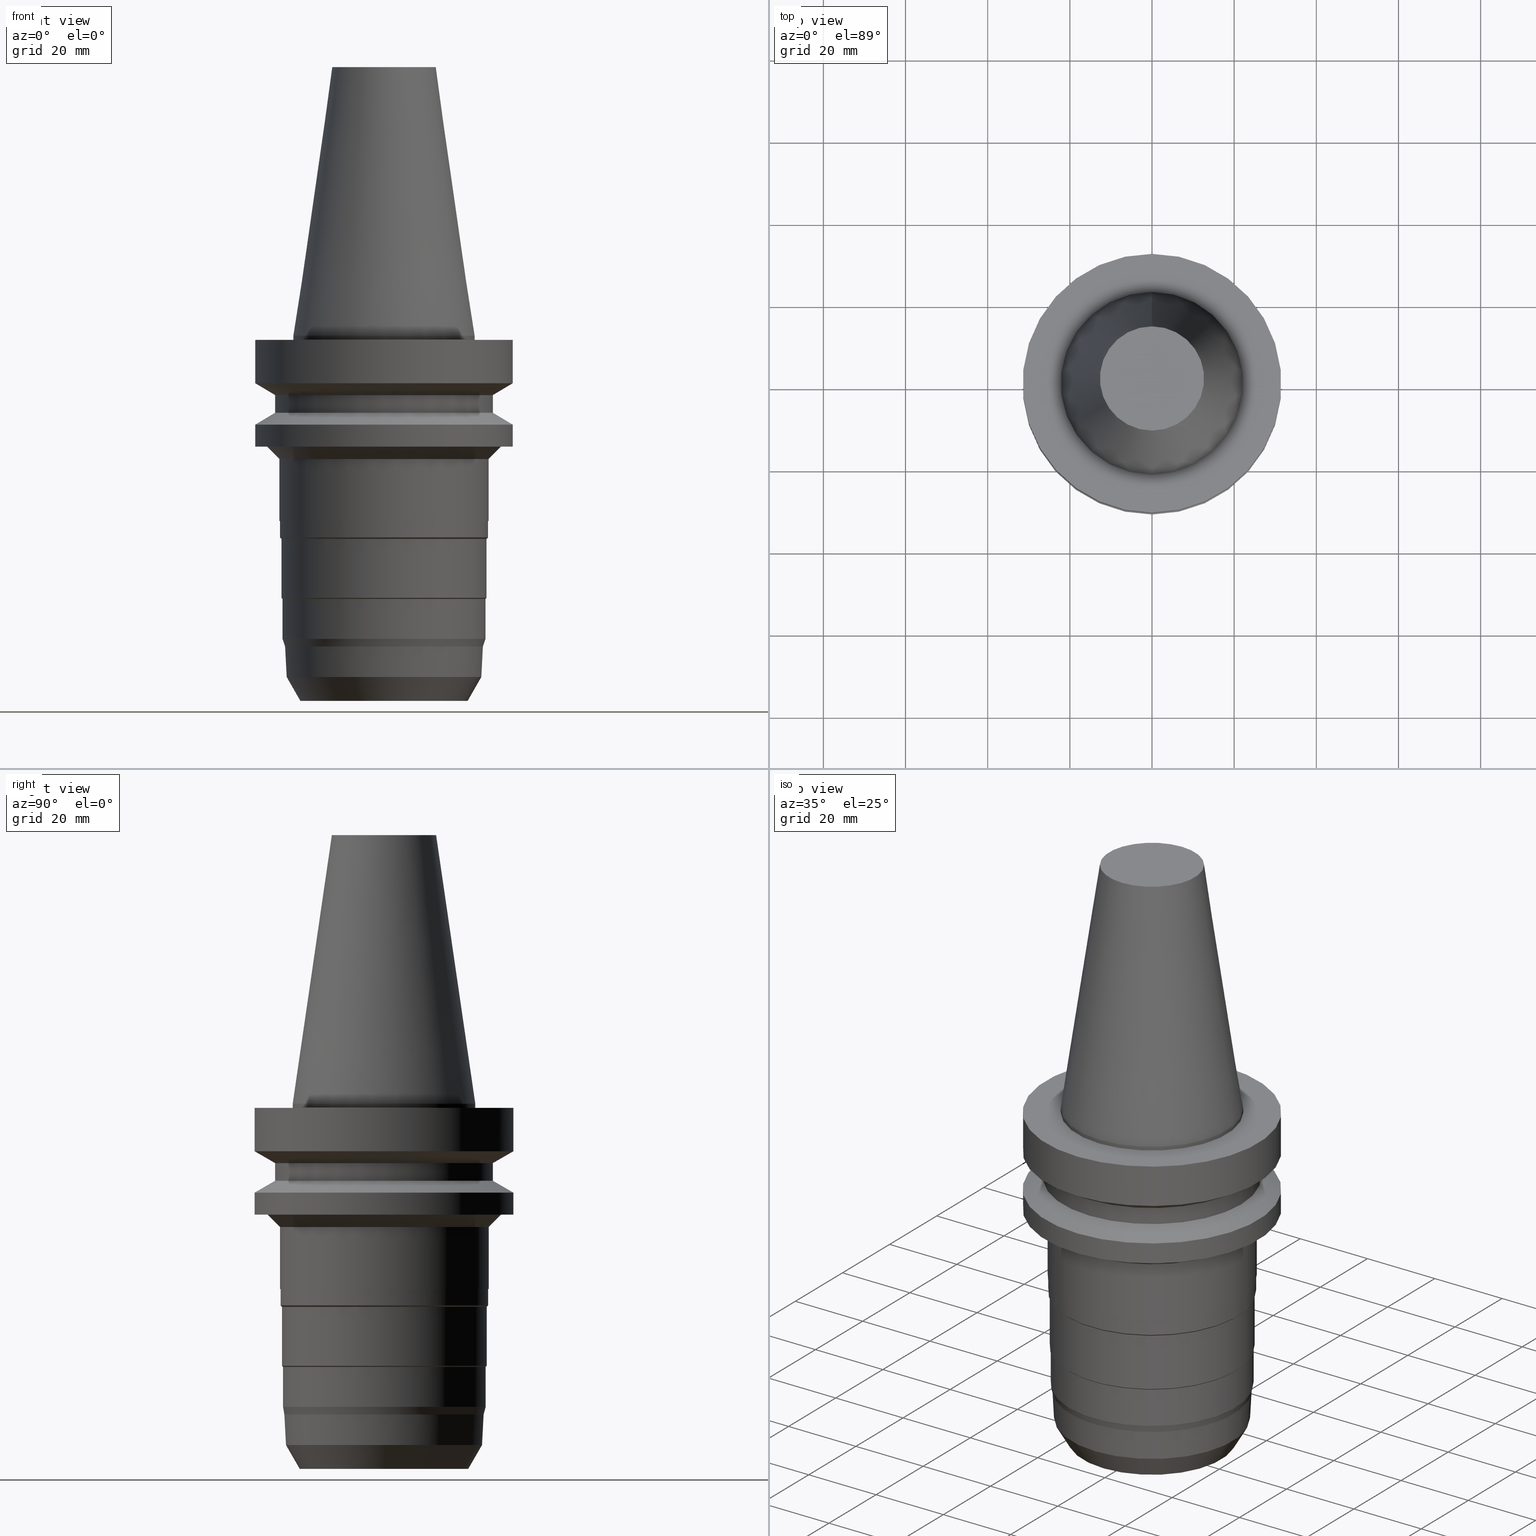
[diagram: canonical four-view strip — front | top / right | iso, engineering-drawing reading convention]
A machine part, canonical four-view strip (front | top / right | iso — engineering-drawing reading convention). The complete STEP part file that produces these views, byte-faithful:
ISO-10303-21;
HEADER;
FILE_DESCRIPTION((''),'1');
FILE_NAME('V:/90_\X2\53D65F9730C730FC30BF\X0\/00_\X2\6DE18DEF30C730FC30BF\X0\/ALL/BBT-BKUS\X2\FF76FF80FF9BFF78FF9E752852A05DE556F3\X0\201801/BBT40-HMC-S/BBT40-HMC.750S-3.5.stp','2018-02-07T04:08:06',(''),(''),'Spatial Interop R21 SP3','Kubotek KeyCreator 2011 V10.0.2 (22737)',' ');
FILE_SCHEMA(('automotive_design'));
ENDSEC;
DATA;
#1=MECHANICAL_DESIGN_GEOMETRIC_PRESENTATION_REPRESENTATION(' ',(#10,#11,#12,#13,#14,#15,#16,#17,#18,#19,#20,#21,#22,#23,#24,#25,#26,#27,#28,#29,#30,#31,#32,#33,#34,#35,#36,#37,#38,#39,#40,#41,#42,#43,#44,#45,#46,#47,#48,#49,#50,#51,#52,#53),#6);
#2=PRODUCT_DEFINITION_CONTEXT('',#54,'design');
#3=APPLICATION_PROTOCOL_DEFINITION('INTERNATIONAL STANDARD','automotive_design',1994,#54);
#4=PRODUCT_CATEGORY_RELATIONSHIP('NONE','NONE',#55,#56);
#5=SHAPE_DEFINITION_REPRESENTATION(#57,#58);
#6= (GEOMETRIC_REPRESENTATION_CONTEXT(3)GLOBAL_UNCERTAINTY_ASSIGNED_CONTEXT((#61))GLOBAL_UNIT_ASSIGNED_CONTEXT((#63,#64,#65))REPRESENTATION_CONTEXT('NONE','WORKSPACE'));
#10=STYLED_ITEM('',(#67,#68),#69);
#11=STYLED_ITEM('',(#70,#71),#72);
#12=STYLED_ITEM('',(#73,#74),#75);
#13=STYLED_ITEM('',(#76),#77);
#14=STYLED_ITEM('',(#78),#79);
#15=STYLED_ITEM('',(#80,#81),#82);
#16=STYLED_ITEM('',(#83,#84),#85);
#17=STYLED_ITEM('',(#86,#87),#88);
#18=STYLED_ITEM('',(#89),#90);
#19=STYLED_ITEM('',(#91,#92),#93);
#20=STYLED_ITEM('',(#94),#95);
#21=STYLED_ITEM('',(#96),#97);
#22=STYLED_ITEM('',(#98,#99),#100);
#23=STYLED_ITEM('',(#101,#102),#103);
#24=STYLED_ITEM('',(#104,#105),#106);
#25=STYLED_ITEM('',(#107),#108);
#26=STYLED_ITEM('',(#109),#110);
#27=STYLED_ITEM('',(#111,#112),#113);
#28=STYLED_ITEM('',(#114,#115),#116);
#29=STYLED_ITEM('',(#117,#118),#119);
#30=STYLED_ITEM('',(#120),#121);
#31=STYLED_ITEM('',(#122),#123);
#32=STYLED_ITEM('',(#124),#125);
#33=STYLED_ITEM('',(#126),#127);
#34=STYLED_ITEM('',(#128,#129),#130);
#35=STYLED_ITEM('',(#131,#132),#133);
#36=STYLED_ITEM('',(#134),#135);
#37=STYLED_ITEM('',(#136,#137),#138);
#38=STYLED_ITEM('',(#139,#140),#141);
#39=STYLED_ITEM('',(#142,#143),#144);
#40=STYLED_ITEM('',(#145,#146),#147);
#41=STYLED_ITEM('',(#148,#149),#150);
#42=STYLED_ITEM('',(#151),#152);
#43=STYLED_ITEM('',(#153),#154);
#44=STYLED_ITEM('',(#155),#156);
#45=STYLED_ITEM('',(#157,#158),#159);
#46=STYLED_ITEM('',(#160),#161);
#47=STYLED_ITEM('',(#162),#163);
#48=STYLED_ITEM('',(#164),#165);
#49=STYLED_ITEM('',(#166),#167);
#50=STYLED_ITEM('',(#168,#169),#170);
#51=STYLED_ITEM('',(#171,#172),#173);
#52=STYLED_ITEM('',(#174),#175);
#53=STYLED_ITEM('',(#176),#177);
#54=APPLICATION_CONTEXT(' ');
#55=PRODUCT_CATEGORY('part','NONE');
#56=PRODUCT_RELATED_PRODUCT_CATEGORY('detail',' ',(#178));
#57=PRODUCT_DEFINITION_SHAPE('NONE','NONE',#179);
#58=ADVANCED_BREP_SHAPE_REPRESENTATION('Unnamed[1]',(#170,#180),#6);
#61=UNCERTAINTY_MEASURE_WITH_UNIT(LENGTH_MEASURE(1.0E-006),#63,'','');
#63= (CONVERSION_BASED_UNIT('MILLIMETRE',#183)LENGTH_UNIT()NAMED_UNIT(#186));
#64= (NAMED_UNIT(#188)PLANE_ANGLE_UNIT()SI_UNIT($,.RADIAN.));
#65= (NAMED_UNIT(#188)SOLID_ANGLE_UNIT()SI_UNIT($,.STERADIAN.));
#67=PRESENTATION_STYLE_ASSIGNMENT((#194));
#68=PRESENTATION_STYLE_ASSIGNMENT((#195));
#69=ADVANCED_FACE('Unnamed[1]',(#196),#197,.T.);
#70=PRESENTATION_STYLE_ASSIGNMENT((#198));
#71=PRESENTATION_STYLE_ASSIGNMENT((#199));
#72=ADVANCED_FACE('Unnamed[1]',(#200,#201),#202,.T.);
#73=PRESENTATION_STYLE_ASSIGNMENT((#203));
#74=PRESENTATION_STYLE_ASSIGNMENT((#204));
#75=ADVANCED_FACE('Unnamed[1]',(#205,#206),#207,.T.);
#76=PRESENTATION_STYLE_ASSIGNMENT((#208));
#77=EDGE_CURVE('Unnamed[1]',#209,#209,#210,.T.);
#78=PRESENTATION_STYLE_ASSIGNMENT((#211));
#79=EDGE_CURVE('Unnamed[1]',#212,#212,#213,.T.);
#80=PRESENTATION_STYLE_ASSIGNMENT((#214));
#81=PRESENTATION_STYLE_ASSIGNMENT((#215));
#82=ADVANCED_FACE('Unnamed[1]',(#216,#217),#218,.T.);
#83=PRESENTATION_STYLE_ASSIGNMENT((#219));
#84=PRESENTATION_STYLE_ASSIGNMENT((#220));
#85=ADVANCED_FACE('Unnamed[1]',(#221,#222),#223,.T.);
#86=PRESENTATION_STYLE_ASSIGNMENT((#224));
#87=PRESENTATION_STYLE_ASSIGNMENT((#225));
#88=ADVANCED_FACE('Unnamed[1]',(#226,#227),#228,.T.);
#89=PRESENTATION_STYLE_ASSIGNMENT((#229));
#90=EDGE_CURVE('Unnamed[1]',#230,#230,#231,.T.);
#91=PRESENTATION_STYLE_ASSIGNMENT((#232));
#92=PRESENTATION_STYLE_ASSIGNMENT((#233));
#93=ADVANCED_FACE('Unnamed[1]',(#234,#235),#236,.T.);
#94=PRESENTATION_STYLE_ASSIGNMENT((#237));
#95=EDGE_CURVE('Unnamed[1]',#238,#238,#239,.T.);
#96=PRESENTATION_STYLE_ASSIGNMENT((#240));
#97=EDGE_CURVE('Unnamed[1]',#241,#241,#242,.T.);
#98=PRESENTATION_STYLE_ASSIGNMENT((#243));
#99=PRESENTATION_STYLE_ASSIGNMENT((#244));
#100=ADVANCED_FACE('Unnamed[1]',(#245,#246),#247,.T.);
#101=PRESENTATION_STYLE_ASSIGNMENT((#248));
#102=PRESENTATION_STYLE_ASSIGNMENT((#249));
#103=ADVANCED_FACE('Unnamed[1]',(#250,#251),#252,.T.);
#104=PRESENTATION_STYLE_ASSIGNMENT((#253));
#105=PRESENTATION_STYLE_ASSIGNMENT((#254));
#106=ADVANCED_FACE('Unnamed[1]',(#255,#256),#257,.T.);
#107=PRESENTATION_STYLE_ASSIGNMENT((#258));
#108=EDGE_CURVE('Unnamed[1]',#259,#259,#260,.T.);
#109=PRESENTATION_STYLE_ASSIGNMENT((#261));
#110=EDGE_CURVE('Unnamed[1]',#262,#262,#263,.T.);
#111=PRESENTATION_STYLE_ASSIGNMENT((#264));
#112=PRESENTATION_STYLE_ASSIGNMENT((#265));
#113=ADVANCED_FACE('Unnamed[1]',(#266,#267),#268,.T.);
#114=PRESENTATION_STYLE_ASSIGNMENT((#269));
#115=PRESENTATION_STYLE_ASSIGNMENT((#270));
#116=ADVANCED_FACE('Unnamed[1]',(#271,#272),#273,.T.);
#117=PRESENTATION_STYLE_ASSIGNMENT((#274));
#118=PRESENTATION_STYLE_ASSIGNMENT((#275));
#119=ADVANCED_FACE('Unnamed[1]',(#276,#277),#278,.T.);
#120=PRESENTATION_STYLE_ASSIGNMENT((#279));
#121=EDGE_CURVE('Unnamed[1]',#280,#280,#281,.T.);
#122=PRESENTATION_STYLE_ASSIGNMENT((#282));
#123=EDGE_CURVE('Unnamed[1]',#283,#283,#284,.T.);
#124=PRESENTATION_STYLE_ASSIGNMENT((#285));
#125=EDGE_CURVE('Unnamed[1]',#286,#286,#287,.T.);
#126=PRESENTATION_STYLE_ASSIGNMENT((#288));
#127=EDGE_CURVE('Unnamed[1]',#289,#289,#290,.T.);
#128=PRESENTATION_STYLE_ASSIGNMENT((#291));
#129=PRESENTATION_STYLE_ASSIGNMENT((#292));
#130=ADVANCED_FACE('Unnamed[1]',(#293,#294),#295,.T.);
#131=PRESENTATION_STYLE_ASSIGNMENT((#296));
#132=PRESENTATION_STYLE_ASSIGNMENT((#297));
#133=ADVANCED_FACE('Unnamed[1]',(#298),#299,.T.);
#134=PRESENTATION_STYLE_ASSIGNMENT((#300));
#135=EDGE_CURVE('Unnamed[1]',#301,#301,#302,.T.);
#136=PRESENTATION_STYLE_ASSIGNMENT((#303));
#137=PRESENTATION_STYLE_ASSIGNMENT((#304));
#138=ADVANCED_FACE('Unnamed[1]',(#305,#306),#307,.T.);
#139=PRESENTATION_STYLE_ASSIGNMENT((#308));
#140=PRESENTATION_STYLE_ASSIGNMENT((#309));
#141=ADVANCED_FACE('Unnamed[1]',(#310,#311),#312,.T.);
#142=PRESENTATION_STYLE_ASSIGNMENT((#313));
#143=PRESENTATION_STYLE_ASSIGNMENT((#314));
#144=ADVANCED_FACE('Unnamed[1]',(#315,#316),#317,.T.);
#145=PRESENTATION_STYLE_ASSIGNMENT((#318));
#146=PRESENTATION_STYLE_ASSIGNMENT((#319));
#147=ADVANCED_FACE('Unnamed[1]',(#320,#321),#322,.T.);
#148=PRESENTATION_STYLE_ASSIGNMENT((#323));
#149=PRESENTATION_STYLE_ASSIGNMENT((#324));
#150=ADVANCED_FACE('Unnamed[1]',(#325,#326),#327,.T.);
#151=PRESENTATION_STYLE_ASSIGNMENT((#328));
#152=EDGE_CURVE('Unnamed[1]',#329,#329,#330,.T.);
#153=PRESENTATION_STYLE_ASSIGNMENT((#331));
#154=EDGE_CURVE('Unnamed[1]',#332,#332,#333,.T.);
#155=PRESENTATION_STYLE_ASSIGNMENT((#334));
#156=EDGE_CURVE('Unnamed[1]',#335,#335,#336,.T.);
#157=PRESENTATION_STYLE_ASSIGNMENT((#337));
#158=PRESENTATION_STYLE_ASSIGNMENT((#338));
#159=ADVANCED_FACE('Unnamed[1]',(#339,#340),#341,.T.);
#160=PRESENTATION_STYLE_ASSIGNMENT((#342));
#161=EDGE_CURVE('Unnamed[1]',#343,#343,#344,.T.);
#162=PRESENTATION_STYLE_ASSIGNMENT((#345));
#163=EDGE_CURVE('Unnamed[1]',#346,#346,#347,.T.);
#164=PRESENTATION_STYLE_ASSIGNMENT((#348));
#165=EDGE_CURVE('Unnamed[1]',#349,#349,#350,.T.);
#166=PRESENTATION_STYLE_ASSIGNMENT((#351));
#167=EDGE_CURVE('Unnamed[1]',#352,#352,#353,.T.);
#168=PRESENTATION_STYLE_ASSIGNMENT((#354));
#169=PRESENTATION_STYLE_ASSIGNMENT((#355));
#170=MANIFOLD_SOLID_BREP('Unnamed[1]',#356);
#171=PRESENTATION_STYLE_ASSIGNMENT((#357));
#172=PRESENTATION_STYLE_ASSIGNMENT((#358));
#173=ADVANCED_FACE('Unnamed[1]',(#359,#360),#361,.T.);
#174=PRESENTATION_STYLE_ASSIGNMENT((#362));
#175=EDGE_CURVE('Unnamed[1]',#363,#363,#364,.T.);
#176=PRESENTATION_STYLE_ASSIGNMENT((#365));
#177=EDGE_CURVE('Unnamed[1]',#366,#366,#367,.T.);
#178=PRODUCT('Unnamed[1]','Unnamed[1]','PART-Unnamed[1]-DESC',(#368));
#179=PRODUCT_DEFINITION('NONE','NONE',#369,#2);
#180=AXIS2_PLACEMENT_3D('',#370,#371,#372);
#183=LENGTH_MEASURE_WITH_UNIT(LENGTH_MEASURE(1.0),#373);
#186=DIMENSIONAL_EXPONENTS(1.0,0.0,0.0,0.0,0.0,0.0,0.0);
#188=DIMENSIONAL_EXPONENTS(0.0,0.0,0.0,0.0,0.0,0.0,0.0);
#194=SURFACE_STYLE_USAGE(.BOTH.,#374);
#195=CURVE_STYLE('',#375,POSITIVE_LENGTH_MEASURE(1000.0),#376);
#196=FACE_OUTER_BOUND('',#377,.T.);
#197=PLANE('',#378);
#198=SURFACE_STYLE_USAGE(.BOTH.,#379);
#199=CURVE_STYLE('',#380,POSITIVE_LENGTH_MEASURE(1000.0),#381);
#200=FACE_BOUND('',#382,.T.);
#201=FACE_BOUND('',#383,.T.);
#202=CONICAL_SURFACE('',#384,29.0000000000004,1.04719755119651);
#203=SURFACE_STYLE_USAGE(.BOTH.,#385);
#204=CURVE_STYLE('',#386,POSITIVE_LENGTH_MEASURE(1000.0),#387);
#205=FACE_BOUND('',#388,.T.);
#206=FACE_BOUND('',#389,.T.);
#207=CONICAL_SURFACE('',#390,22.180788497608,0.523598775598287);
#208=CURVE_STYLE('',#391,POSITIVE_LENGTH_MEASURE(1000.0),#392);
#209=VERTEX_POINT('',#393);
#210=CIRCLE('',#394,26.5);
#211=CURVE_STYLE('',#395,POSITIVE_LENGTH_MEASURE(1000.0),#396);
#212=VERTEX_POINT('',#397);
#213=CIRCLE('',#398,31.5000000000004);
#214=SURFACE_STYLE_USAGE(.BOTH.,#399);
#215=CURVE_STYLE('',#400,POSITIVE_LENGTH_MEASURE(1000.0),#401);
#216=FACE_BOUND('',#402,.T.);
#217=FACE_OUTER_BOUND('',#403,.T.);
#218=PLANE('',#404);
#219=SURFACE_STYLE_USAGE(.BOTH.,#405);
#220=CURVE_STYLE('',#406,POSITIVE_LENGTH_MEASURE(1000.0),#407);
#221=FACE_BOUND('',#408,.T.);
#222=FACE_BOUND('',#409,.T.);
#223=CONICAL_SURFACE('',#410,25.1749999999999,0.785398163396408);
#224=SURFACE_STYLE_USAGE(.BOTH.,#411);
#225=CURVE_STYLE('',#412,POSITIVE_LENGTH_MEASURE(1000.0),#413);
#226=FACE_OUTER_BOUND('',#414,.T.);
#227=FACE_BOUND('',#415,.T.);
#228=PLANE('',#416);
#229=CURVE_STYLE('',#417,POSITIVE_LENGTH_MEASURE(1000.0),#418);
#230=VERTEX_POINT('',#419);
#231=CIRCLE('',#420,25.5);
#232=SURFACE_STYLE_USAGE(.BOTH.,#421);
#233=CURVE_STYLE('',#422,POSITIVE_LENGTH_MEASURE(1000.0),#423);
#234=FACE_BOUND('',#424,.T.);
#235=FACE_BOUND('',#425,.T.);
#236=CYLINDRICAL_SURFACE('',#426,31.5);
#237=CURVE_STYLE('',#427,POSITIVE_LENGTH_MEASURE(1000.0),#428);
#238=VERTEX_POINT('',#429);
#239=CIRCLE('',#430,24.7499999999998);
#240=CURVE_STYLE('',#431,POSITIVE_LENGTH_MEASURE(1000.0),#432);
#241=VERTEX_POINT('',#433);
#242=CIRCLE('',#434,31.5000000000004);
#243=SURFACE_STYLE_USAGE(.BOTH.,#435);
#244=CURVE_STYLE('',#436,POSITIVE_LENGTH_MEASURE(1000.0),#437);
#245=FACE_BOUND('',#438,.T.);
#246=FACE_BOUND('',#439,.T.);
#247=CONICAL_SURFACE('',#440,28.9999999999999,1.04719755119657);
#248=SURFACE_STYLE_USAGE(.BOTH.,#441);
#249=CURVE_STYLE('',#442,POSITIVE_LENGTH_MEASURE(1000.0),#443);
#250=FACE_BOUND('',#444,.T.);
#251=FACE_BOUND('',#445,.T.);
#252=CYLINDRICAL_SURFACE('',#446,26.4999999999997);
#253=SURFACE_STYLE_USAGE(.BOTH.,#447);
#254=CURVE_STYLE('',#448,POSITIVE_LENGTH_MEASURE(1000.0),#449);
#255=FACE_BOUND('',#450,.T.);
#256=FACE_OUTER_BOUND('',#451,.T.);
#257=PLANE('',#452);
#258=CURVE_STYLE('',#453,POSITIVE_LENGTH_MEASURE(1000.0),#454);
#259=VERTEX_POINT('',#455);
#260=CIRCLE('',#456,20.5000000000001);
#261=CURVE_STYLE('',#457,POSITIVE_LENGTH_MEASURE(1000.0),#458);
#262=VERTEX_POINT('',#459);
#263=CIRCLE('',#460,22.2250000000001);
#264=SURFACE_STYLE_USAGE(.BOTH.,#461);
#265=CURVE_STYLE('',#462,POSITIVE_LENGTH_MEASURE(1000.0),#463);
#266=FACE_BOUND('',#464,.T.);
#267=FACE_BOUND('',#465,.T.);
#268=CONICAL_SURFACE('',#466,24.8749999999998,0.785398163397427);
#269=SURFACE_STYLE_USAGE(.BOTH.,#467);
#270=CURVE_STYLE('',#468,POSITIVE_LENGTH_MEASURE(1000.0),#469);
#271=FACE_BOUND('',#470,.T.);
#272=FACE_BOUND('',#471,.T.);
#273=CONICAL_SURFACE('',#472,24.4999999999995,0.261799387798623);
#274=SURFACE_STYLE_USAGE(.BOTH.,#473);
#275=CURVE_STYLE('',#474,POSITIVE_LENGTH_MEASURE(1000.0),#475);
#276=FACE_BOUND('',#476,.T.);
#277=FACE_BOUND('',#477,.T.);
#278=CONICAL_SURFACE('',#478,24.0557884976076,0.052359877559767);
#279=CURVE_STYLE('',#479,POSITIVE_LENGTH_MEASURE(1000.0),#480);
#280=VERTEX_POINT('',#481);
#281=CIRCLE('',#482,26.4999999999995);
#282=CURVE_STYLE('',#483,POSITIVE_LENGTH_MEASURE(1000.0),#484);
#283=VERTEX_POINT('',#485);
#284=CIRCLE('',#486,23.8615769952158);
#285=CURVE_STYLE('',#487,POSITIVE_LENGTH_MEASURE(1000.0),#488);
#286=VERTEX_POINT('',#489);
#287=CIRCLE('',#490,24.7499999999996);
#288=CURVE_STYLE('',#491,POSITIVE_LENGTH_MEASURE(1000.0),#492);
#289=VERTEX_POINT('',#493);
#290=CIRCLE('',#494,24.9999999999996);
#291=SURFACE_STYLE_USAGE(.BOTH.,#495);
#292=CURVE_STYLE('',#496,POSITIVE_LENGTH_MEASURE(1000.0),#497);
#293=FACE_BOUND('',#498,.T.);
#294=FACE_BOUND('',#499,.T.);
#295=CONICAL_SURFACE('',#500,17.4562500000001,0.144812498238936);
#296=SURFACE_STYLE_USAGE(.BOTH.,#501);
#297=CURVE_STYLE('',#502,POSITIVE_LENGTH_MEASURE(1000.0),#503);
#298=FACE_OUTER_BOUND('',#504,.T.);
#299=PLANE('',#505);
#300=CURVE_STYLE('',#506,POSITIVE_LENGTH_MEASURE(1000.0),#507);
#301=VERTEX_POINT('',#508);
#302=CIRCLE('',#509,24.2499999999993);
#303=SURFACE_STYLE_USAGE(.BOTH.,#510);
#304=CURVE_STYLE('',#511,POSITIVE_LENGTH_MEASURE(1000.0),#512);
#305=FACE_BOUND('',#513,.T.);
#306=FACE_BOUND('',#514,.T.);
#307=CYLINDRICAL_SURFACE('',#515,22.2250000000001);
#308=SURFACE_STYLE_USAGE(.BOTH.,#516);
#309=CURVE_STYLE('',#517,POSITIVE_LENGTH_MEASURE(1000.0),#518);
#310=FACE_BOUND('',#519,.T.);
#311=FACE_BOUND('',#520,.T.);
#312=CYLINDRICAL_SURFACE('',#521,24.7499999999997);
#313=SURFACE_STYLE_USAGE(.BOTH.,#522);
#314=CURVE_STYLE('',#523,POSITIVE_LENGTH_MEASURE(1000.0),#524);
#315=FACE_BOUND('',#525,.T.);
#316=FACE_BOUND('',#526,.T.);
#317=CYLINDRICAL_SURFACE('',#527,31.5000000000005);
#318=SURFACE_STYLE_USAGE(.BOTH.,#528);
#319=CURVE_STYLE('',#529,POSITIVE_LENGTH_MEASURE(1000.0),#530);
#320=FACE_BOUND('',#531,.T.);
#321=FACE_BOUND('',#532,.T.);
#322=CYLINDRICAL_SURFACE('',#533,25.4999999999999);
#323=SURFACE_STYLE_USAGE(.BOTH.,#534);
#324=CURVE_STYLE('',#535,POSITIVE_LENGTH_MEASURE(1000.0),#536);
#325=FACE_BOUND('',#537,.T.);
#326=FACE_BOUND('',#538,.T.);
#327=CONICAL_SURFACE('',#539,27.0000000000002,0.785398163397458);
#328=CURVE_STYLE('',#540,POSITIVE_LENGTH_MEASURE(1000.0),#541);
#329=VERTEX_POINT('',#542);
#330=CIRCLE('',#543,25.3499999999984);
#331=CURVE_STYLE('',#544,POSITIVE_LENGTH_MEASURE(1000.0),#545);
#332=VERTEX_POINT('',#546);
#333=CIRCLE('',#547,31.5000000000007);
#334=CURVE_STYLE('',#548,POSITIVE_LENGTH_MEASURE(1000.0),#549);
#335=VERTEX_POINT('',#550);
#336=CIRCLE('',#551,24.9999999999997);
#337=SURFACE_STYLE_USAGE(.BOTH.,#552);
#338=CURVE_STYLE('',#553,POSITIVE_LENGTH_MEASURE(1000.0),#554);
#339=FACE_BOUND('',#555,.T.);
#340=FACE_BOUND('',#556,.T.);
#341=CYLINDRICAL_SURFACE('',#557,24.9999999999997);
#342=CURVE_STYLE('',#558,POSITIVE_LENGTH_MEASURE(1000.0),#559);
#343=VERTEX_POINT('',#560);
#344=CIRCLE('',#561,12.6875000000002);
#345=CURVE_STYLE('',#562,POSITIVE_LENGTH_MEASURE(1000.0),#563);
#346=VERTEX_POINT('',#564);
#347=CIRCLE('',#565,25.4999999999998);
#348=CURVE_STYLE('',#566,POSITIVE_LENGTH_MEASURE(1000.0),#567);
#349=VERTEX_POINT('',#568);
#350=CIRCLE('',#569,22.2250000000001);
#351=CURVE_STYLE('',#570,POSITIVE_LENGTH_MEASURE(1000.0),#571);
#352=VERTEX_POINT('',#572);
#353=CIRCLE('',#573,28.5000000000004);
#354=SURFACE_STYLE_USAGE(.BOTH.,#574);
#355=CURVE_STYLE('',#575,POSITIVE_LENGTH_MEASURE(1000.0),#576);
#356=CLOSED_SHELL('',(#69,#130,#138,#88,#93,#100,#103,#72,#144,#106,#150,#147,#82,#173,#85,#159,#113,#141,#116,#119,#75,#133));
#357=SURFACE_STYLE_USAGE(.BOTH.,#577);
#358=CURVE_STYLE('',#578,POSITIVE_LENGTH_MEASURE(1000.0),#579);
#359=FACE_BOUND('',#580,.T.);
#360=FACE_BOUND('',#581,.T.);
#361=CYLINDRICAL_SURFACE('',#582,25.3499999999993);
#362=CURVE_STYLE('',#583,POSITIVE_LENGTH_MEASURE(1000.0),#584);
#363=VERTEX_POINT('',#585);
#364=CIRCLE('',#586,31.4999999999997);
#365=CURVE_STYLE('',#587,POSITIVE_LENGTH_MEASURE(1000.0),#588);
#366=VERTEX_POINT('',#589);
#367=CIRCLE('',#590,25.3500000000001);
#368=PRODUCT_CONTEXT('',#54,'mechanical');
#369=PRODUCT_DEFINITION_FORMATION_WITH_SPECIFIED_SOURCE(' ','NONE',#178,.NOT_KNOWN.);
#370=CARTESIAN_POINT('',(0.0,0.0,0.0));
#371=DIRECTION('',(0.0,0.0,1.0));
#372=DIRECTION('',(1.0,0.0,0.0));
#373= (NAMED_UNIT(#186)LENGTH_UNIT()SI_UNIT(.MILLI.,.METRE.));
#374=SURFACE_SIDE_STYLE('',(#592));
#375=DRAUGHTING_PRE_DEFINED_CURVE_FONT('continuous');
#376=COLOUR_RGB('',0.0,1.0,0.0);
#377=EDGE_LOOP('',(#593));
#378=AXIS2_PLACEMENT_3D('',#594,#595,#596);
#379=SURFACE_SIDE_STYLE('',(#597));
#380=DRAUGHTING_PRE_DEFINED_CURVE_FONT('continuous');
#381=COLOUR_RGB('',0.0,1.0,0.0);
#382=EDGE_LOOP('',(#598));
#383=EDGE_LOOP('',(#599));
#384=AXIS2_PLACEMENT_3D('',#600,#601,#602);
#385=SURFACE_SIDE_STYLE('',(#603));
#386=DRAUGHTING_PRE_DEFINED_CURVE_FONT('continuous');
#387=COLOUR_RGB('',0.0,1.0,0.0);
#388=EDGE_LOOP('',(#604));
#389=EDGE_LOOP('',(#605));
#390=AXIS2_PLACEMENT_3D('',#606,#607,#608);
#391=DRAUGHTING_PRE_DEFINED_CURVE_FONT('continuous');
#392=COLOUR_RGB('',0.0,1.0,0.0);
#393=CARTESIAN_POINT('',(1.1479681728942E-015,26.5,-18.7477430013855));
#394=AXIS2_PLACEMENT_3D('',#609,#610,#611);
#395=DRAUGHTING_PRE_DEFINED_CURVE_FONT('continuous');
#396=COLOUR_RGB('',0.0,1.0,0.0);
#397=CARTESIAN_POINT('',(1.65327317884891E-015,31.5000000000004,-26.9999999999998));
#398=AXIS2_PLACEMENT_3D('',#612,#613,#614);
#399=SURFACE_SIDE_STYLE('',(#615));
#400=DRAUGHTING_PRE_DEFINED_CURVE_FONT('continuous');
#401=COLOUR_RGB('',0.0,1.0,0.0);
#402=EDGE_LOOP('',(#616));
#403=EDGE_LOOP('',(#617));
#404=AXIS2_PLACEMENT_3D('',#618,#619,#620);
#405=SURFACE_SIDE_STYLE('',(#621));
#406=DRAUGHTING_PRE_DEFINED_CURVE_FONT('continuous');
#407=COLOUR_RGB('',0.0,1.0,0.0);
#408=EDGE_LOOP('',(#622));
#409=EDGE_LOOP('',(#623));
#410=AXIS2_PLACEMENT_3D('',#624,#625,#626);
#411=SURFACE_SIDE_STYLE('',(#627));
#412=DRAUGHTING_PRE_DEFINED_CURVE_FONT('continuous');
#413=COLOUR_RGB('',0.0,1.0,0.0);
#414=EDGE_LOOP('',(#628));
#415=EDGE_LOOP('',(#629));
#416=AXIS2_PLACEMENT_3D('',#630,#631,#632);
#417=DRAUGHTING_PRE_DEFINED_CURVE_FONT('continuous');
#418=COLOUR_RGB('',0.0,1.0,0.0);
#419=CARTESIAN_POINT('',(1.83697019872104E-015,25.5,-30.0000000000001));
#420=AXIS2_PLACEMENT_3D('',#633,#634,#635);
#421=SURFACE_SIDE_STYLE('',(#636));
#422=DRAUGHTING_PRE_DEFINED_CURVE_FONT('continuous');
#423=COLOUR_RGB('',0.0,1.0,0.0);
#424=EDGE_LOOP('',(#637));
#425=EDGE_LOOP('',(#638));
#426=AXIS2_PLACEMENT_3D('',#639,#640,#641);
#427=DRAUGHTING_PRE_DEFINED_CURVE_FONT('continuous');
#428=COLOUR_RGB('',0.0,1.0,0.0);
#429=CARTESIAN_POINT('',(3.92193137426939E-015,24.7499999999998,-64.0499999999999));
#430=AXIS2_PLACEMENT_3D('',#642,#643,#644);
#431=DRAUGHTING_PRE_DEFINED_CURVE_FONT('continuous');
#432=COLOUR_RGB('',0.0,1.0,0.0);
#433=CARTESIAN_POINT('',(7.08182973902924E-016,31.5000000000004,-11.5655056526664));
#434=AXIS2_PLACEMENT_3D('',#645,#646,#647);
#435=SURFACE_SIDE_STYLE('',(#648));
#436=DRAUGHTING_PRE_DEFINED_CURVE_FONT('continuous');
#437=COLOUR_RGB('',0.0,1.0,0.0);
#438=EDGE_LOOP('',(#649));
#439=EDGE_LOOP('',(#650));
#440=AXIS2_PLACEMENT_3D('',#651,#652,#653);
#441=SURFACE_SIDE_STYLE('',(#654));
#442=DRAUGHTING_PRE_DEFINED_CURVE_FONT('continuous');
#443=COLOUR_RGB('',0.0,1.0,0.0);
#444=EDGE_LOOP('',(#655));
#445=EDGE_LOOP('',(#656));
#446=AXIS2_PLACEMENT_3D('',#657,#658,#659);
#447=SURFACE_SIDE_STYLE('',(#660));
#448=DRAUGHTING_PRE_DEFINED_CURVE_FONT('continuous');
#449=COLOUR_RGB('',0.0,1.0,0.0);
#450=EDGE_LOOP('',(#661));
#451=EDGE_LOOP('',(#662));
#452=AXIS2_PLACEMENT_3D('',#663,#664,#665);
#453=DRAUGHTING_PRE_DEFINED_CURVE_FONT('continuous');
#454=COLOUR_RGB('',0.0,1.0,0.0);
#455=CARTESIAN_POINT('',(5.44355502220997E-015,20.5000000000001,-88.8999999999998));
#456=AXIS2_PLACEMENT_3D('',#666,#667,#668);
#457=DRAUGHTING_PRE_DEFINED_CURVE_FONT('continuous');
#458=COLOUR_RGB('',0.0,1.0,0.0);
#459=CARTESIAN_POINT('',(6.12323399573622E-017,22.2250000000001,-0.999999999999912));
#460=AXIS2_PLACEMENT_3D('',#669,#670,#671);
#461=SURFACE_SIDE_STYLE('',(#672));
#462=DRAUGHTING_PRE_DEFINED_CURVE_FONT('continuous');
#463=COLOUR_RGB('',0.0,1.0,0.0);
#464=EDGE_LOOP('',(#673));
#465=EDGE_LOOP('',(#674));
#466=AXIS2_PLACEMENT_3D('',#675,#676,#677);
#467=SURFACE_SIDE_STYLE('',(#678));
#468=DRAUGHTING_PRE_DEFINED_CURVE_FONT('continuous');
#469=COLOUR_RGB('',0.0,1.0,0.0);
#470=EDGE_LOOP('',(#679));
#471=EDGE_LOOP('',(#680));
#472=AXIS2_PLACEMENT_3D('',#681,#682,#683);
#473=SURFACE_SIDE_STYLE('',(#684));
#474=DRAUGHTING_PRE_DEFINED_CURVE_FONT('continuous');
#475=COLOUR_RGB('',0.0,1.0,0.0);
#476=EDGE_LOOP('',(#685));
#477=EDGE_LOOP('',(#686));
#478=AXIS2_PLACEMENT_3D('',#687,#688,#689);
#479=DRAUGHTING_PRE_DEFINED_CURVE_FONT('continuous');
#480=COLOUR_RGB('',0.0,1.0,0.0);
#481=CARTESIAN_POINT('',(8.8494551369045E-016,26.4999999999995,-14.4522569986152));
#482=AXIS2_PLACEMENT_3D('',#690,#691,#692);
#483=DRAUGHTING_PRE_DEFINED_CURVE_FONT('continuous');
#484=COLOUR_RGB('',0.0,1.0,0.0);
#485=CARTESIAN_POINT('',(5.08703448979067E-015,23.8615769952158,-83.0775778507314));
#486=AXIS2_PLACEMENT_3D('',#693,#694,#695);
#487=DRAUGHTING_PRE_DEFINED_CURVE_FONT('continuous');
#488=COLOUR_RGB('',0.0,1.0,0.0);
#489=CARTESIAN_POINT('',(4.51894668885374E-015,24.7499999999996,-73.8000000000001));
#490=AXIS2_PLACEMENT_3D('',#696,#697,#698);
#491=DRAUGHTING_PRE_DEFINED_CURVE_FONT('continuous');
#492=COLOUR_RGB('',0.0,1.0,0.0);
#493=CARTESIAN_POINT('',(3.02793921089187E-015,24.9999999999996,-49.4500000000006));
#494=AXIS2_PLACEMENT_3D('',#699,#700,#701);
#495=SURFACE_SIDE_STYLE('',(#702));
#496=DRAUGHTING_PRE_DEFINED_CURVE_FONT('continuous');
#497=COLOUR_RGB('',0.0,1.0,0.0);
#498=EDGE_LOOP('',(#703));
#499=EDGE_LOOP('',(#704));
#500=AXIS2_PLACEMENT_3D('',#705,#706,#707);
#501=SURFACE_SIDE_STYLE('',(#708));
#502=DRAUGHTING_PRE_DEFINED_CURVE_FONT('continuous');
#503=COLOUR_RGB('',0.0,1.0,0.0);
#504=EDGE_LOOP('',(#709));
#505=AXIS2_PLACEMENT_3D('',#710,#711,#712);
#506=DRAUGHTING_PRE_DEFINED_CURVE_FONT('continuous');
#507=COLOUR_RGB('',0.0,1.0,0.0);
#508=CARTESIAN_POINT('',(4.63320779074766E-015,24.2499999999993,-75.6660254037895));
#509=AXIS2_PLACEMENT_3D('',#713,#714,#715);
#510=SURFACE_SIDE_STYLE('',(#716));
#511=DRAUGHTING_PRE_DEFINED_CURVE_FONT('continuous');
#512=COLOUR_RGB('',0.0,1.0,0.0);
#513=EDGE_LOOP('',(#717));
#514=EDGE_LOOP('',(#718));
#515=AXIS2_PLACEMENT_3D('',#719,#720,#721);
#516=SURFACE_SIDE_STYLE('',(#722));
#517=DRAUGHTING_PRE_DEFINED_CURVE_FONT('continuous');
#518=COLOUR_RGB('',0.0,1.0,0.0);
#519=EDGE_LOOP('',(#723));
#520=EDGE_LOOP('',(#724));
#521=AXIS2_PLACEMENT_3D('',#725,#726,#727);
#522=SURFACE_SIDE_STYLE('',(#728));
#523=DRAUGHTING_PRE_DEFINED_CURVE_FONT('continuous');
#524=COLOUR_RGB('',0.0,1.0,0.0);
#525=EDGE_LOOP('',(#729));
#526=EDGE_LOOP('',(#730));
#527=AXIS2_PLACEMENT_3D('',#731,#732,#733);
#528=SURFACE_SIDE_STYLE('',(#734));
#529=DRAUGHTING_PRE_DEFINED_CURVE_FONT('continuous');
#530=COLOUR_RGB('',0.0,1.0,0.0);
#531=EDGE_LOOP('',(#735));
#532=EDGE_LOOP('',(#736));
#533=AXIS2_PLACEMENT_3D('',#737,#738,#739);
#534=SURFACE_SIDE_STYLE('',(#740));
#535=DRAUGHTING_PRE_DEFINED_CURVE_FONT('continuous');
#536=COLOUR_RGB('',0.0,1.0,0.0);
#537=EDGE_LOOP('',(#741));
#538=EDGE_LOOP('',(#742));
#539=AXIS2_PLACEMENT_3D('',#743,#744,#745);
#540=DRAUGHTING_PRE_DEFINED_CURVE_FONT('continuous');
#541=COLOUR_RGB('',0.0,1.0,0.0);
#542=CARTESIAN_POINT('',(2.7615785320774E-015,25.3499999999984,-45.100000000002));
#543=AXIS2_PLACEMENT_3D('',#746,#747,#748);
#544=DRAUGHTING_PRE_DEFINED_CURVE_FONT('continuous');
#545=COLOUR_RGB('',0.0,1.0,0.0);
#546=CARTESIAN_POINT('',(1.32473071268174E-015,31.5000000000007,-21.6344943473346));
#547=AXIS2_PLACEMENT_3D('',#749,#750,#751);
#548=DRAUGHTING_PRE_DEFINED_CURVE_FONT('continuous');
#549=COLOUR_RGB('',0.0,1.0,0.0);
#550=CARTESIAN_POINT('',(3.90662328928006E-015,24.9999999999997,-63.8));
#551=AXIS2_PLACEMENT_3D('',#752,#753,#754);
#552=SURFACE_SIDE_STYLE('',(#755));
#553=DRAUGHTING_PRE_DEFINED_CURVE_FONT('continuous');
#554=COLOUR_RGB('',0.0,1.0,0.0);
#555=EDGE_LOOP('',(#756));
#556=EDGE_LOOP('',(#757));
#557=AXIS2_PLACEMENT_3D('',#758,#759,#760);
#558=DRAUGHTING_PRE_DEFINED_CURVE_FONT('continuous');
#559=COLOUR_RGB('',0.0,1.0,0.0);
#560=CARTESIAN_POINT('',(-4.00459503321185E-015,12.6875000000002,65.4000000000001));
#561=AXIS2_PLACEMENT_3D('',#761,#762,#763);
#562=DRAUGHTING_PRE_DEFINED_CURVE_FONT('continuous');
#563=COLOUR_RGB('',0.0,1.0,0.0);
#564=CARTESIAN_POINT('',(2.7615785320774E-015,25.4999999999998,-45.100000000002));
#565=AXIS2_PLACEMENT_3D('',#764,#765,#766);
#566=DRAUGHTING_PRE_DEFINED_CURVE_FONT('continuous');
#567=COLOUR_RGB('',0.0,1.0,0.0);
#568=CARTESIAN_POINT('',(1.71319921032766E-029,22.2250000000001,-2.8153873565375E-013));
#569=AXIS2_PLACEMENT_3D('',#767,#768,#769);
#570=DRAUGHTING_PRE_DEFINED_CURVE_FONT('continuous');
#571=COLOUR_RGB('',0.0,1.0,0.0);
#572=CARTESIAN_POINT('',(1.65327317884891E-015,28.5000000000004,-26.9999999999998));
#573=AXIS2_PLACEMENT_3D('',#770,#771,#772);
#574=SURFACE_SIDE_STYLE('',(#773));
#575=DRAUGHTING_PRE_DEFINED_CURVE_FONT('continuous');
#576=COLOUR_RGB('',0.0,1.0,0.0);
#577=SURFACE_SIDE_STYLE('',(#774));
#578=DRAUGHTING_PRE_DEFINED_CURVE_FONT('continuous');
#579=COLOUR_RGB('',0.0,1.0,0.0);
#580=EDGE_LOOP('',(#775));
#581=EDGE_LOOP('',(#776));
#582=AXIS2_PLACEMENT_3D('',#777,#778,#779);
#583=DRAUGHTING_PRE_DEFINED_CURVE_FONT('continuous');
#584=COLOUR_RGB('',0.0,1.0,0.0);
#585=CARTESIAN_POINT('',(6.12323399573568E-017,31.4999999999997,-0.999999999999825));
#586=AXIS2_PLACEMENT_3D('',#780,#781,#782);
#587=DRAUGHTING_PRE_DEFINED_CURVE_FONT('continuous');
#588=COLOUR_RGB('',0.0,1.0,0.0);
#589=CARTESIAN_POINT('',(3.00650789190671E-015,25.3500000000001,-49.0999999999994));
#590=AXIS2_PLACEMENT_3D('',#783,#784,#785);
#592=SURFACE_STYLE_FILL_AREA(#786);
#593=ORIENTED_EDGE('',*,*,#161,.F.);
#594=CARTESIAN_POINT('',(-4.00459503321185E-015,6.34375000000009,65.4000000000001));
#595=DIRECTION('',(-6.12323399573677E-017,9.97602686800676E-016,1.0));
#596=DIRECTION('',(-5.62583941297933E-032,-1.0,9.97602686800676E-016));
#597=SURFACE_STYLE_FILL_AREA(#787);
#598=ORIENTED_EDGE('',*,*,#154,.F.);
#599=ORIENTED_EDGE('',*,*,#77,.T.);
#600=CARTESIAN_POINT('',(1.23634944278797E-015,2.47269888557594E-015,-20.1911186743601));
#601=DIRECTION('',(6.12323399573676E-017,1.2246467991471E-016,-1.0));
#602=DIRECTION('',(-1.23259516440782E-032,1.0,1.2246467991471E-016));
#603=SURFACE_STYLE_FILL_AREA(#788);
#604=ORIENTED_EDGE('',*,*,#108,.F.);
#605=ORIENTED_EDGE('',*,*,#123,.T.);
#606=CARTESIAN_POINT('',(5.26529475600032E-015,1.05305895120006E-014,-85.9887889253656));
#607=DIRECTION('',(-6.12323399573677E-017,-1.2246467991473E-016,1.0));
#608=DIRECTION('',(-1.23259516440783E-032,1.0,1.2246467991473E-016));
#609=CARTESIAN_POINT('',(1.1479681728942E-015,2.29593634578839E-015,-18.7477430013855));
#610=DIRECTION('',(6.12323399573677E-017,1.22464679914764E-016,-1.0));
#611=DIRECTION('',(-1.23259516440783E-032,1.0,1.22464679914764E-016));
#612=CARTESIAN_POINT('',(1.65327317884891E-015,3.30654635769783E-015,-26.9999999999998));
#613=DIRECTION('',(6.12323399573677E-017,1.22464679914769E-016,-1.0));
#614=DIRECTION('',(-1.23259516440782E-032,1.0,1.22464679914769E-016));
#615=SURFACE_STYLE_FILL_AREA(#789);
#616=ORIENTED_EDGE('',*,*,#152,.F.);
#617=ORIENTED_EDGE('',*,*,#163,.T.);
#618=CARTESIAN_POINT('',(2.7615785320774E-015,25.4249999999991,-45.100000000002));
#619=DIRECTION('',(6.12323399573677E-017,1.22464679914735E-016,-1.0));
#620=DIRECTION('',(-1.23259516440783E-032,1.0,1.22464679914735E-016));
#621=SURFACE_STYLE_FILL_AREA(#790);
#622=ORIENTED_EDGE('',*,*,#127,.F.);
#623=ORIENTED_EDGE('',*,*,#177,.T.);
#624=CARTESIAN_POINT('',(3.01722355139929E-015,6.03444710279858E-015,-49.275));
#625=DIRECTION('',(-6.12323399573677E-017,-1.22464679914726E-016,1.0));
#626=DIRECTION('',(-1.23259516440798E-032,1.0,1.22464679914726E-016));
#627=SURFACE_STYLE_FILL_AREA(#791);
#628=ORIENTED_EDGE('',*,*,#175,.F.);
#629=ORIENTED_EDGE('',*,*,#110,.T.);
#630=CARTESIAN_POINT('',(6.12323399573595E-017,26.8624999999999,-0.999999999999869));
#631=DIRECTION('',(-6.12323399573677E-017,-9.35138060429241E-015,1.0));
#632=DIRECTION('',(5.77434068963536E-031,-1.0,-9.35138060429241E-015));
#633=CARTESIAN_POINT('',(1.83697019872104E-015,3.67394039744207E-015,-30.0000000000001));
#634=DIRECTION('',(6.12323399573677E-017,1.22464679914725E-016,-1.0));
#635=DIRECTION('',(-1.23259516440783E-032,1.0,1.22464679914725E-016));
#636=SURFACE_STYLE_FILL_AREA(#792);
#637=ORIENTED_EDGE('',*,*,#97,.F.);
#638=ORIENTED_EDGE('',*,*,#175,.T.);
#639=CARTESIAN_POINT('',(3.84707656930141E-016,7.69415313860281E-016,-6.28275282633309));
#640=DIRECTION('',(6.12323399573676E-017,1.2246467991477E-016,-1.0));
#641=DIRECTION('',(-1.23259516440783E-032,1.0,1.2246467991477E-016));
#642=CARTESIAN_POINT('',(3.92193137426939E-015,7.84386274853879E-015,-64.0499999999999));
#643=DIRECTION('',(6.12323399573677E-017,1.22464679914743E-016,-1.0));
#644=DIRECTION('',(-1.23259516440784E-032,1.0,1.22464679914743E-016));
#645=CARTESIAN_POINT('',(7.08182973902924E-016,1.41636594780585E-015,-11.5655056526664));
#646=DIRECTION('',(6.12323399573677E-017,1.22464679914769E-016,-1.0));
#647=DIRECTION('',(-1.23259516440782E-032,1.0,1.22464679914769E-016));
#648=SURFACE_STYLE_FILL_AREA(#793);
#649=ORIENTED_EDGE('',*,*,#121,.F.);
#650=ORIENTED_EDGE('',*,*,#97,.T.);
#651=CARTESIAN_POINT('',(7.96564243796687E-016,1.59312848759337E-015,-13.0088813256408));
#652=DIRECTION('',(-6.12323399573677E-017,-1.22464679914712E-016,1.0));
#653=DIRECTION('',(-1.23259516440783E-032,1.0,1.22464679914712E-016));
#654=SURFACE_STYLE_FILL_AREA(#794);
#655=ORIENTED_EDGE('',*,*,#77,.F.);
#656=ORIENTED_EDGE('',*,*,#121,.T.);
#657=CARTESIAN_POINT('',(1.01645684329232E-015,2.03291368658465E-015,-16.6000000000004));
#658=DIRECTION('',(6.12323399573676E-017,1.22464679914765E-016,-1.0));
#659=DIRECTION('',(-1.23259516440784E-032,1.0,1.22464679914765E-016));
#660=SURFACE_STYLE_FILL_AREA(#795);
#661=ORIENTED_EDGE('',*,*,#167,.F.);
#662=ORIENTED_EDGE('',*,*,#79,.T.);
#663=CARTESIAN_POINT('',(1.65327317884891E-015,30.0000000000004,-26.9999999999998));
#664=DIRECTION('',(6.12323399573677E-017,2.49094046578174E-015,-1.0));
#665=DIRECTION('',(-1.5735326614508E-031,1.0,2.49094046578174E-015));
#666=CARTESIAN_POINT('',(5.44355502220997E-015,1.08871100444199E-014,-88.8999999999998));
#667=DIRECTION('',(6.12323399573677E-017,1.22464679914705E-016,-1.0));
#668=DIRECTION('',(-1.23259516440782E-032,1.0,1.22464679914705E-016));
#669=CARTESIAN_POINT('',(6.12323399573624E-017,1.22464679914725E-016,-0.999999999999915));
#670=DIRECTION('',(6.12323399573677E-017,1.22464679914758E-016,-1.0));
#671=DIRECTION('',(-1.23259516440775E-032,1.0,1.22464679914758E-016));
#672=SURFACE_STYLE_FILL_AREA(#796);
#673=ORIENTED_EDGE('',*,*,#95,.F.);
#674=ORIENTED_EDGE('',*,*,#156,.T.);
#675=CARTESIAN_POINT('',(3.91427733177473E-015,7.82855466354945E-015,-63.925));
#676=DIRECTION('',(-6.12323399573677E-017,-1.22464679914708E-016,1.0));
#677=DIRECTION('',(-1.23259516440784E-032,1.0,1.22464679914708E-016));
#678=SURFACE_STYLE_FILL_AREA(#797);
#679=ORIENTED_EDGE('',*,*,#135,.F.);
#680=ORIENTED_EDGE('',*,*,#125,.T.);
#681=CARTESIAN_POINT('',(4.5760772398007E-015,9.1521544796014E-015,-74.7330127018948));
#682=DIRECTION('',(-6.12323399573677E-017,-1.22464679914751E-016,1.0));
#683=DIRECTION('',(-1.23259516440786E-032,1.0,1.22464679914751E-016));
#684=SURFACE_STYLE_FILL_AREA(#798);
#685=ORIENTED_EDGE('',*,*,#123,.F.);
#686=ORIENTED_EDGE('',*,*,#135,.T.);
#687=CARTESIAN_POINT('',(4.86012114026916E-015,9.72024228053832E-015,-79.3718016272605));
#688=DIRECTION('',(-6.12323399573677E-017,-1.22464679914721E-016,1.0));
#689=DIRECTION('',(-1.23259516440747E-032,1.0,1.22464679914721E-016));
#690=CARTESIAN_POINT('',(8.8494551369045E-016,1.7698910273809E-015,-14.4522569986152));
#691=DIRECTION('',(6.12323399573677E-017,1.22464679914767E-016,-1.0));
#692=DIRECTION('',(-1.23259516440786E-032,1.0,1.22464679914767E-016));
#693=CARTESIAN_POINT('',(5.08703448979067E-015,1.01740689795813E-014,-83.0775778507314));
#694=DIRECTION('',(6.12323399573677E-017,1.22464679914751E-016,-1.0));
#695=DIRECTION('',(-1.23259516440783E-032,1.0,1.22464679914751E-016));
#696=CARTESIAN_POINT('',(4.51894668885374E-015,9.03789337770748E-015,-73.8000000000001));
#697=DIRECTION('',(6.12323399573677E-017,1.22464679914744E-016,-1.0));
#698=DIRECTION('',(-1.23259516440785E-032,1.0,1.22464679914744E-016));
#699=CARTESIAN_POINT('',(3.02793921089187E-015,6.05587842178373E-015,-49.4500000000006));
#700=DIRECTION('',(6.12323399573676E-017,1.22464679914738E-016,-1.0));
#701=DIRECTION('',(-1.23259516440785E-032,1.0,1.22464679914738E-016));
#702=SURFACE_STYLE_FILL_AREA(#799);
#703=ORIENTED_EDGE('',*,*,#165,.F.);
#704=ORIENTED_EDGE('',*,*,#161,.T.);
#705=CARTESIAN_POINT('',(-2.00229751660592E-015,-4.00459503321183E-015,32.6999999999999));
#706=DIRECTION('',(6.12323399573677E-017,1.22464679914734E-016,-1.0));
#707=DIRECTION('',(-1.23259516440803E-032,1.0,1.22464679914734E-016));
#708=SURFACE_STYLE_FILL_AREA(#800);
#709=ORIENTED_EDGE('',*,*,#108,.T.);
#710=CARTESIAN_POINT('',(5.44355502220998E-015,10.2500000000001,-88.8999999999999));
#711=DIRECTION('',(6.12323399573677E-017,9.13422620662814E-015,-1.0));
#712=DIRECTION('',(-5.6413719706252E-031,1.0,9.13422620662814E-015));
#713=CARTESIAN_POINT('',(4.63320779074766E-015,9.26641558149532E-015,-75.6660254037895));
#714=DIRECTION('',(6.12323399573677E-017,1.22464679914758E-016,-1.0));
#715=DIRECTION('',(-1.23259516440787E-032,1.0,1.22464679914758E-016));
#716=SURFACE_STYLE_FILL_AREA(#801);
#717=ORIENTED_EDGE('',*,*,#110,.F.);
#718=ORIENTED_EDGE('',*,*,#165,.T.);
#719=CARTESIAN_POINT('',(3.06161699786899E-017,6.12323399573798E-017,-0.500000000000099));
#720=DIRECTION('',(6.12323399573677E-017,1.22464679914758E-016,-1.0));
#721=DIRECTION('',(-1.23259516440775E-032,1.0,1.22464679914758E-016));
#722=SURFACE_STYLE_FILL_AREA(#802);
#723=ORIENTED_EDGE('',*,*,#125,.F.);
#724=ORIENTED_EDGE('',*,*,#95,.T.);
#725=CARTESIAN_POINT('',(4.22043903156157E-015,8.44087806312313E-015,-68.925));
#726=DIRECTION('',(6.12323399573677E-017,1.22464679914744E-016,-1.0));
#727=DIRECTION('',(-1.23259516440785E-032,1.0,1.22464679914744E-016));
#728=SURFACE_STYLE_FILL_AREA(#803);
#729=ORIENTED_EDGE('',*,*,#79,.F.);
#730=ORIENTED_EDGE('',*,*,#154,.T.);
#731=CARTESIAN_POINT('',(1.48900194576533E-015,2.97800389153066E-015,-24.3172471736672));
#732=DIRECTION('',(6.12323399573677E-017,1.22464679914768E-016,-1.0));
#733=DIRECTION('',(-1.23259516440781E-032,1.0,1.22464679914768E-016));
#734=SURFACE_STYLE_FILL_AREA(#804);
#735=ORIENTED_EDGE('',*,*,#163,.F.);
#736=ORIENTED_EDGE('',*,*,#90,.T.);
#737=CARTESIAN_POINT('',(2.29927436539922E-015,4.59854873079844E-015,-37.5500000000011));
#738=DIRECTION('',(6.12323399573677E-017,1.22464679914725E-016,-1.0));
#739=DIRECTION('',(-1.23259516440784E-032,1.0,1.22464679914725E-016));
#740=SURFACE_STYLE_FILL_AREA(#805);
#741=ORIENTED_EDGE('',*,*,#90,.F.);
#742=ORIENTED_EDGE('',*,*,#167,.T.);
#743=CARTESIAN_POINT('',(1.74512168878498E-015,3.49024337756995E-015,-28.5));
#744=DIRECTION('',(-6.12323399573677E-017,-1.22464679914752E-016,1.0));
#745=DIRECTION('',(-1.23259516440782E-032,1.0,1.22464679914752E-016));
#746=CARTESIAN_POINT('',(2.7615785320774E-015,5.52315706415481E-015,-45.100000000002));
#747=DIRECTION('',(6.12323399573677E-017,1.22464679914723E-016,-1.0));
#748=DIRECTION('',(-1.23259516440748E-032,1.0,1.22464679914723E-016));
#749=CARTESIAN_POINT('',(1.32473071268174E-015,2.64946142536349E-015,-21.6344943473346));
#750=DIRECTION('',(6.12323399573677E-017,1.22464679914767E-016,-1.0));
#751=DIRECTION('',(-1.2325951644078E-032,1.0,1.22464679914767E-016));
#752=CARTESIAN_POINT('',(3.90662328928006E-015,7.81324657856011E-015,-63.8));
#753=DIRECTION('',(6.12323399573677E-017,1.22464679914738E-016,-1.0));
#754=DIRECTION('',(-1.23259516440784E-032,1.0,1.22464679914738E-016));
#755=SURFACE_STYLE_FILL_AREA(#806);
#756=ORIENTED_EDGE('',*,*,#156,.F.);
#757=ORIENTED_EDGE('',*,*,#127,.T.);
#758=CARTESIAN_POINT('',(3.46728125008596E-015,6.93456250017192E-015,-56.6250000000003));
#759=DIRECTION('',(6.12323399573677E-017,1.22464679914738E-016,-1.0));
#760=DIRECTION('',(-1.23259516440785E-032,1.0,1.22464679914738E-016));
#761=CARTESIAN_POINT('',(-4.00459503321185E-015,-8.0091900664237E-015,65.4000000000001));
#762=DIRECTION('',(6.12323399573677E-017,1.22464679914757E-016,-1.0));
#763=DIRECTION('',(-1.23259516440781E-032,1.0,1.22464679914757E-016));
#764=CARTESIAN_POINT('',(2.7615785320774E-015,5.52315706415481E-015,-45.100000000002));
#765=DIRECTION('',(6.12323399573677E-017,1.22464679914726E-016,-1.0));
#766=DIRECTION('',(-1.23259516440784E-032,1.0,1.22464679914726E-016));
#767=CARTESIAN_POINT('',(1.74032777401202E-029,3.48065554802404E-029,-2.8421709430404E-013));
#768=DIRECTION('',(6.12323399573677E-017,1.22464679914758E-016,-1.0));
#769=DIRECTION('',(-1.23259516440775E-032,1.0,1.22464679914758E-016));
#770=CARTESIAN_POINT('',(1.65327317884891E-015,3.30654635769783E-015,-26.9999999999998));
#771=DIRECTION('',(6.12323399573676E-017,1.2246467991472E-016,-1.0));
#772=DIRECTION('',(-1.23259516440781E-032,1.0,1.2246467991472E-016));
#773=SURFACE_STYLE_FILL_AREA(#807);
#774=SURFACE_STYLE_FILL_AREA(#808);
#775=ORIENTED_EDGE('',*,*,#177,.F.);
#776=ORIENTED_EDGE('',*,*,#152,.T.);
#777=CARTESIAN_POINT('',(2.88404321199206E-015,5.76808642398412E-015,-47.1000000000007));
#778=DIRECTION('',(6.12323399573677E-017,1.22464679914719E-016,-1.0));
#779=DIRECTION('',(-1.23259516440815E-032,1.0,1.22464679914719E-016));
#780=CARTESIAN_POINT('',(6.12323399573572E-017,1.22464679914714E-016,-0.999999999999829));
#781=DIRECTION('',(6.12323399573677E-017,1.22464679914771E-016,-1.0));
#782=DIRECTION('',(-1.23259516440784E-032,1.0,1.22464679914771E-016));
#783=CARTESIAN_POINT('',(3.00650789190671E-015,6.01301578381343E-015,-49.0999999999994));
#784=DIRECTION('',(6.12323399573677E-017,1.22464679914715E-016,-1.0));
#785=DIRECTION('',(-1.23259516440811E-032,1.0,1.22464679914715E-016));
#786=FILL_AREA_STYLE('',(#809));
#787=FILL_AREA_STYLE('',(#810));
#788=FILL_AREA_STYLE('',(#811));
#789=FILL_AREA_STYLE('',(#812));
#790=FILL_AREA_STYLE('',(#813));
#791=FILL_AREA_STYLE('',(#814));
#792=FILL_AREA_STYLE('',(#815));
#793=FILL_AREA_STYLE('',(#816));
#794=FILL_AREA_STYLE('',(#817));
#795=FILL_AREA_STYLE('',(#818));
#796=FILL_AREA_STYLE('',(#819));
#797=FILL_AREA_STYLE('',(#820));
#798=FILL_AREA_STYLE('',(#821));
#799=FILL_AREA_STYLE('',(#822));
#800=FILL_AREA_STYLE('',(#823));
#801=FILL_AREA_STYLE('',(#824));
#802=FILL_AREA_STYLE('',(#825));
#803=FILL_AREA_STYLE('',(#826));
#804=FILL_AREA_STYLE('',(#827));
#805=FILL_AREA_STYLE('',(#828));
#806=FILL_AREA_STYLE('',(#829));
#807=FILL_AREA_STYLE('',(#830));
#808=FILL_AREA_STYLE('',(#831));
#809=FILL_AREA_STYLE_COLOUR('',#832);
#810=FILL_AREA_STYLE_COLOUR('',#833);
#811=FILL_AREA_STYLE_COLOUR('',#834);
#812=FILL_AREA_STYLE_COLOUR('',#835);
#813=FILL_AREA_STYLE_COLOUR('',#836);
#814=FILL_AREA_STYLE_COLOUR('',#837);
#815=FILL_AREA_STYLE_COLOUR('',#838);
#816=FILL_AREA_STYLE_COLOUR('',#839);
#817=FILL_AREA_STYLE_COLOUR('',#840);
#818=FILL_AREA_STYLE_COLOUR('',#841);
#819=FILL_AREA_STYLE_COLOUR('',#842);
#820=FILL_AREA_STYLE_COLOUR('',#843);
#821=FILL_AREA_STYLE_COLOUR('',#844);
#822=FILL_AREA_STYLE_COLOUR('',#845);
#823=FILL_AREA_STYLE_COLOUR('',#846);
#824=FILL_AREA_STYLE_COLOUR('',#847);
#825=FILL_AREA_STYLE_COLOUR('',#848);
#826=FILL_AREA_STYLE_COLOUR('',#849);
#827=FILL_AREA_STYLE_COLOUR('',#850);
#828=FILL_AREA_STYLE_COLOUR('',#851);
#829=FILL_AREA_STYLE_COLOUR('',#852);
#830=FILL_AREA_STYLE_COLOUR('',#853);
#831=FILL_AREA_STYLE_COLOUR('',#854);
#832=COLOUR_RGB('',0.0,1.0,0.0);
#833=COLOUR_RGB('',0.0,1.0,0.0);
#834=COLOUR_RGB('',0.0,1.0,0.0);
#835=COLOUR_RGB('',0.0,1.0,0.0);
#836=COLOUR_RGB('',0.0,1.0,0.0);
#837=COLOUR_RGB('',0.0,1.0,0.0);
#838=COLOUR_RGB('',0.0,1.0,0.0);
#839=COLOUR_RGB('',0.0,1.0,0.0);
#840=COLOUR_RGB('',0.0,1.0,0.0);
#841=COLOUR_RGB('',0.0,1.0,0.0);
#842=COLOUR_RGB('',0.0,1.0,0.0);
#843=COLOUR_RGB('',0.0,1.0,0.0);
#844=COLOUR_RGB('',0.0,1.0,0.0);
#845=COLOUR_RGB('',0.0,1.0,0.0);
#846=COLOUR_RGB('',0.0,1.0,0.0);
#847=COLOUR_RGB('',0.0,1.0,0.0);
#848=COLOUR_RGB('',0.0,1.0,0.0);
#849=COLOUR_RGB('',0.0,1.0,0.0);
#850=COLOUR_RGB('',0.0,1.0,0.0);
#851=COLOUR_RGB('',0.0,1.0,0.0);
#852=COLOUR_RGB('',0.0,1.0,0.0);
#853=COLOUR_RGB('',0.0,1.0,0.0);
#854=COLOUR_RGB('',0.0,1.0,0.0);
ENDSEC;
END-ISO-10303-21;
